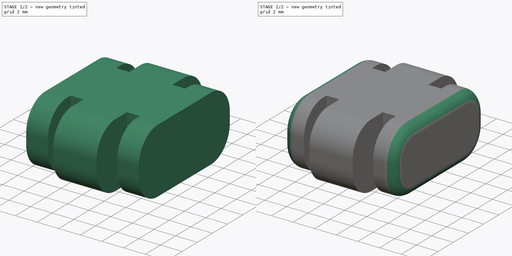
[diagram: build sequence overview — one tinted view per stage of 2, left to right]
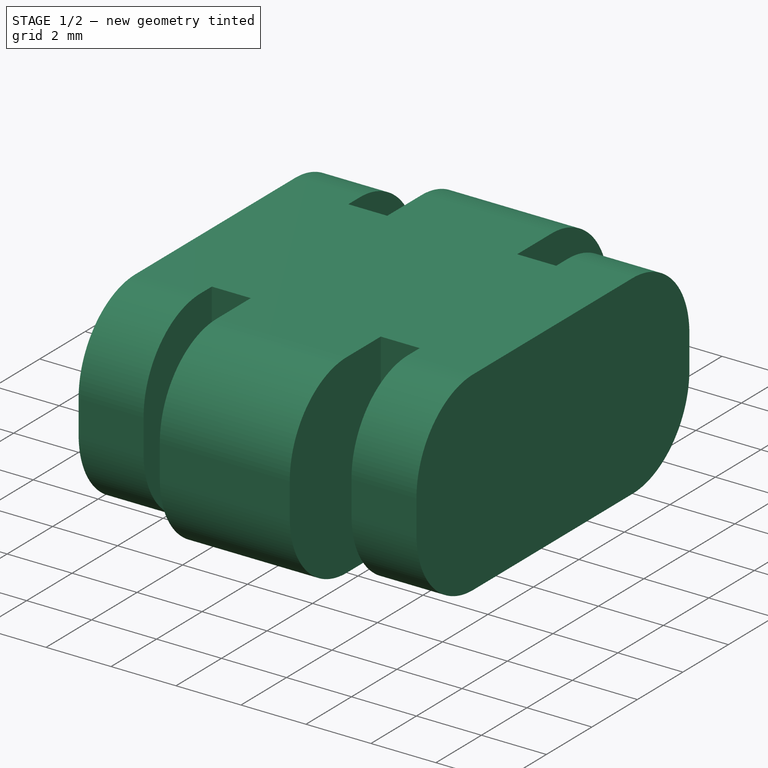
[diagram: stage 1 of 2 — iso view after this stage's code; geometry added in this stage tinted green]
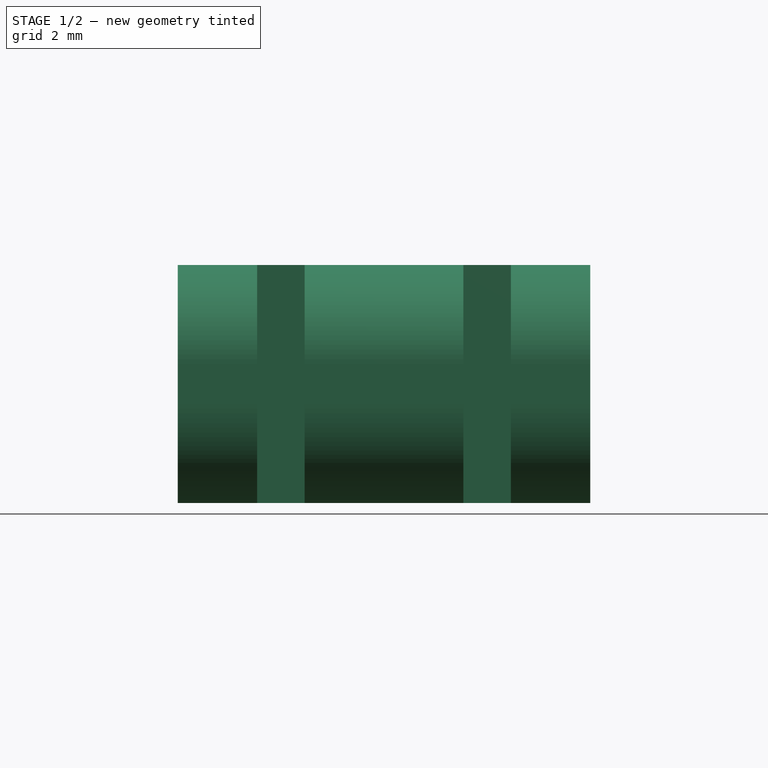
[diagram: stage 1 of 2 — front view after this stage's code; geometry added in this stage tinted green]
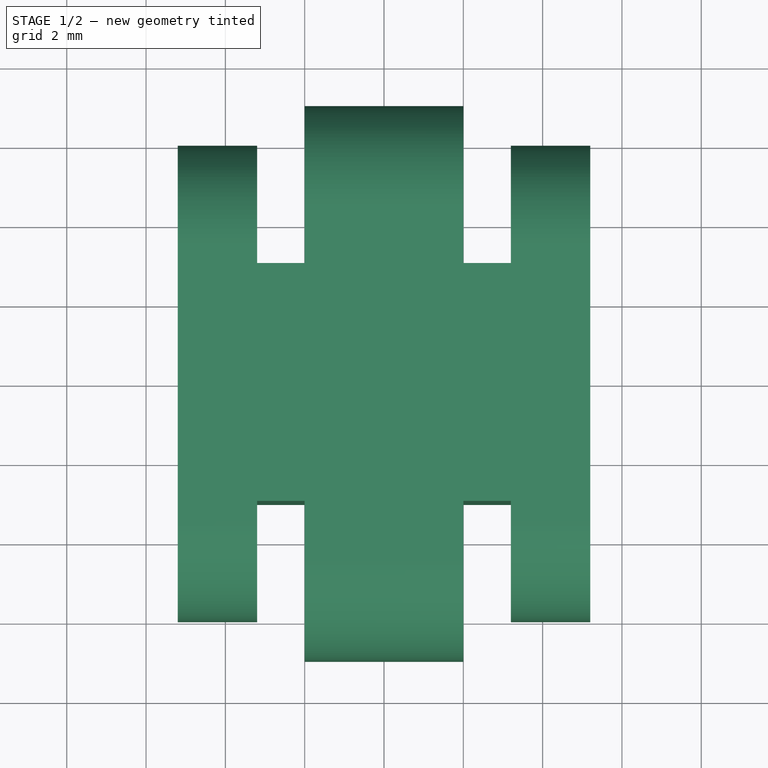
[diagram: stage 1 of 2 — top view after this stage's code; geometry added in this stage tinted green]
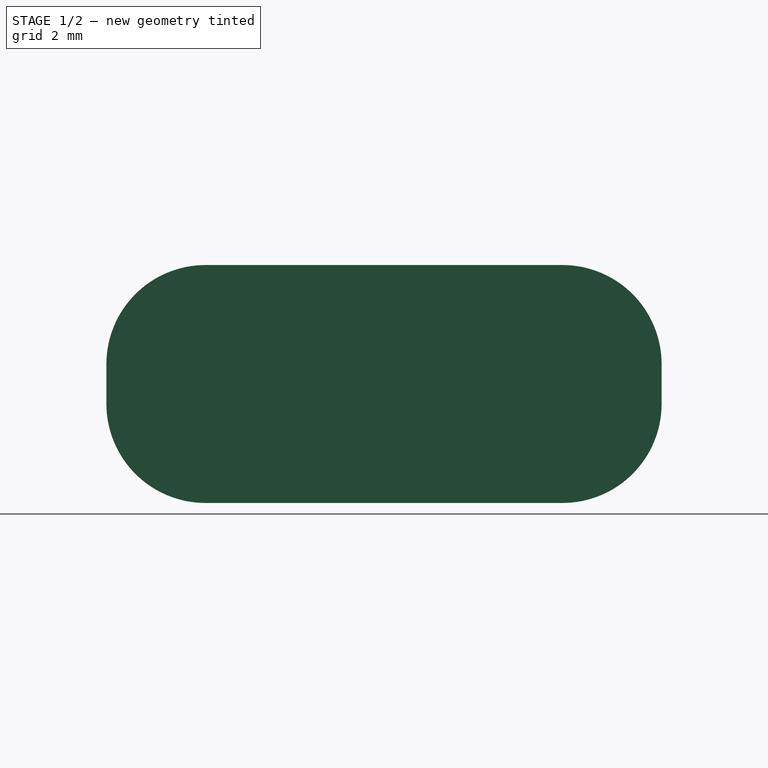
[diagram: stage 1 of 2 — right view after this stage's code; geometry added in this stage tinted green]
FCSTD DOCUMENT  (FreeCAD 0.18R16131 (Git))
Label: shelf_spacer_1
License: All rights reserved
LicenseURL: http://en.wikipedia.org/wiki/All_rights_reserved
objects: PartDesign::Fillet×2, Sketcher::SketchObject×1, PartDesign::Pad×1, PartDesign::Body×1
note: 6 computed .brp shape members not serialized (recipe doc carries the construction recipe); baked Part::Feature solids carry a one-line shape summary decoded from their .brp

FEATURE [Sketcher::SketchObject] Sketch
  MapMode = 5
  Support = -> [XY_Plane]
  sketch-geometry (24):
    g0: LineSegment StartX=0 StartY=7 StartZ=0 EndX=-2 EndY=7 EndZ=0
    g1: LineSegment StartX=-2 StartY=7 StartZ=0 EndX=-2 EndY=3 EndZ=0
    g2: LineSegment StartX=-2 StartY=3 StartZ=0 EndX=-3.2 EndY=3 EndZ=0
    g3: LineSegment StartX=-3.2 StartY=3 StartZ=0 EndX=-3.2 EndY=6 EndZ=0
    g4: LineSegment StartX=-3.2 StartY=6 StartZ=0 EndX=-5.2 EndY=6 EndZ=0
    g5: LineSegment StartX=-5.2 StartY=6 StartZ=0 EndX=-5.2 EndY=0 EndZ=0
    g6: LineSegment StartX=-5.2 StartY=0 StartZ=0 EndX=-5.2 EndY=-6 EndZ=0
    g7: LineSegment StartX=-5.2 StartY=-6 StartZ=0 EndX=-3.2 EndY=-6 EndZ=0
    g8: LineSegment StartX=-3.2 StartY=-6 StartZ=0 EndX=-3.2 EndY=-3 EndZ=0
    g9: LineSegment StartX=-3.2 StartY=-3 StartZ=0 EndX=-2 EndY=-3 EndZ=0
    g10: LineSegment StartX=-2 StartY=-3 StartZ=0 EndX=-2 EndY=-7 EndZ=0
    g11: LineSegment StartX=-2 StartY=-7 StartZ=0 EndX=0 EndY=-7 EndZ=0
    g12: LineSegment StartX=0 StartY=-7 StartZ=0 EndX=2 EndY=-7 EndZ=0
    g13: LineSegment StartX=2 StartY=-7 StartZ=0 EndX=2 EndY=-3 EndZ=0
    g14: LineSegment StartX=2 StartY=-3 StartZ=0 EndX=3.2 EndY=-3 EndZ=0
    g15: LineSegment StartX=3.2 StartY=-3 StartZ=0 EndX=3.2 EndY=-6 EndZ=0
    g16: LineSegment StartX=3.2 StartY=-6 StartZ=0 EndX=5.2 EndY=-6 EndZ=0
    g17: LineSegment StartX=5.2 StartY=-6 StartZ=0 EndX=5.2 EndY=0 EndZ=0
    g18: LineSegment StartX=5.2 StartY=0 StartZ=0 EndX=5.2 EndY=6 EndZ=0
    g19: LineSegment StartX=5.2 StartY=6 StartZ=0 EndX=3.2 EndY=6 EndZ=0
    g20: LineSegment StartX=3.2 StartY=6 StartZ=0 EndX=3.2 EndY=3 EndZ=0
    g21: LineSegment StartX=3.2 StartY=3 StartZ=0 EndX=2 EndY=3 EndZ=0
    g22: LineSegment StartX=2 StartY=3 StartZ=0 EndX=2 EndY=7 EndZ=0
    g23: LineSegment StartX=2 StartY=7 StartZ=0 EndX=0 EndY=7 EndZ=0
  constraints (72):
    c: PointOnObject(g0,g-2)
    c: Horizontal(g0)
    c: Coincident(g0,g1)
    c: Coincident(g1,g2)
    c: Coincident(g2,g3)
    c: Coincident(g3,g4)
    c: Coincident(g4,g5)
    c: PointOnObject(g5,g-1)
    c: Coincident(g5,g6)
    c: Coincident(g6,g7)
    c: Coincident(g7,g8)
    c: Vertical(g8)
    c: Coincident(g8,g9)
    c: Coincident(g9,g10)
    c: Vertical(g10)
    c: Coincident(g10,g11)
    c: PointOnObject(g11,g-2)
    c: Coincident(g11,g12)
    c: Horizontal(g12)
    c: Coincident(g12,g13)
    c: Vertical(g13)
    c: Coincident(g13,g14)
    c: Coincident(g14,g15)
    c: Coincident(g15,g16)
    c: Horizontal(g16)
    c: Coincident(g16,g17)
    c: Coincident(g17,g18)
    c: Vertical(g18)
    c: Coincident(g18,g19)
    c: Horizontal(g19)
    c: Coincident(g19,g20)
    c: Vertical(g20)
    c: Coincident(g20,g21)
    c: Horizontal(g21)
    c: Coincident(g21,g22)
    c: Vertical(g22)
    c: Coincident(g22,g23)
    c: Coincident(g23,g0)
    c: Horizontal(g23)
    c: Horizontal(g11)
    c: Horizontal(g9)
    c: Horizontal(g7)
    c: Horizontal(g4)
    c: Horizontal(g2)
    c: Vertical(g3)
    c: Vertical(g1)
    c: Vertical(g5)
    c: Vertical(g6)
    c: Vertical(g15)
    c: Vertical(g17)
    c: Horizontal(g14)
    c: Equal(g0,g23)
    c: Equal(g23,g11)
    c: Equal(g11,g12)
    c: Equal(g5,g6)
    c: PointOnObject(g17,g-1)
    c: Equal(g18,g17)
    c: Equal(g10,g13)
    c: Equal(g13,g22)
    c: Equal(g22,g1)
    c: Equal(g2,g21)
    c: Equal(g21,g14)
    c: Equal(g14,g9)
    c: Equal(g8,g3)
    c: Equal(g3,g20)
    c: Equal(g19,g4)
    c: DistanceX(g0,g22) = 4
    c: DistanceX(g3,g0) = 1.2
    c: DistanceX(g4,g3) = 2
    c: DistanceY(g12,g22) = 14
    c: DistanceY(g16,g18) = 12
    c: DistanceY(g14,g20) = 6
FEATURE [PartDesign::Pad] Pad
  Length = 6
  Length2 = 100
  Profile = -> Sketch
  Refine = true
  Type = 0
FEATURE [PartDesign::Fillet] Fillet
  Base = -> Pad [Edge13,Edge12,Edge16,Edge32,Edge24,Edge47,Edge50,Edge26,Edge14,Edge20,Edge58,Edge60]
  BaseFeature = -> Pad
  Radius = 2.5
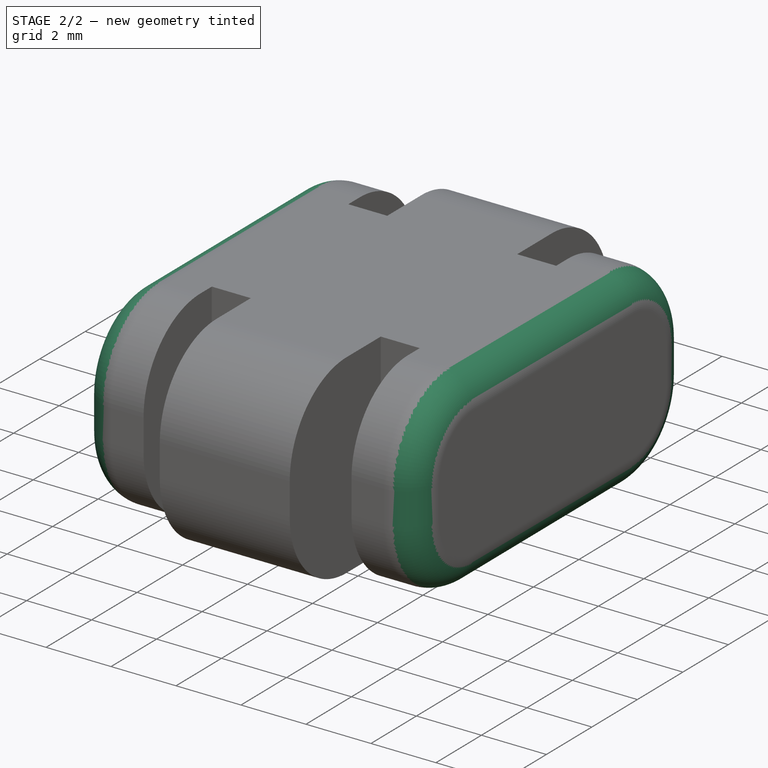
[diagram: stage 2 of 2 — iso view after this stage's code; geometry added in this stage tinted green]
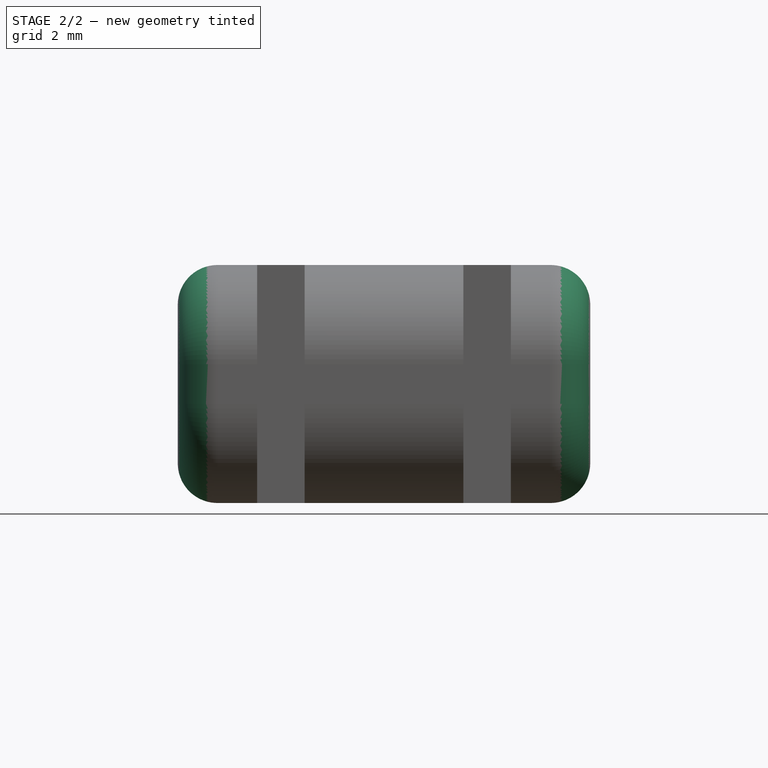
[diagram: stage 2 of 2 — front view after this stage's code; geometry added in this stage tinted green]
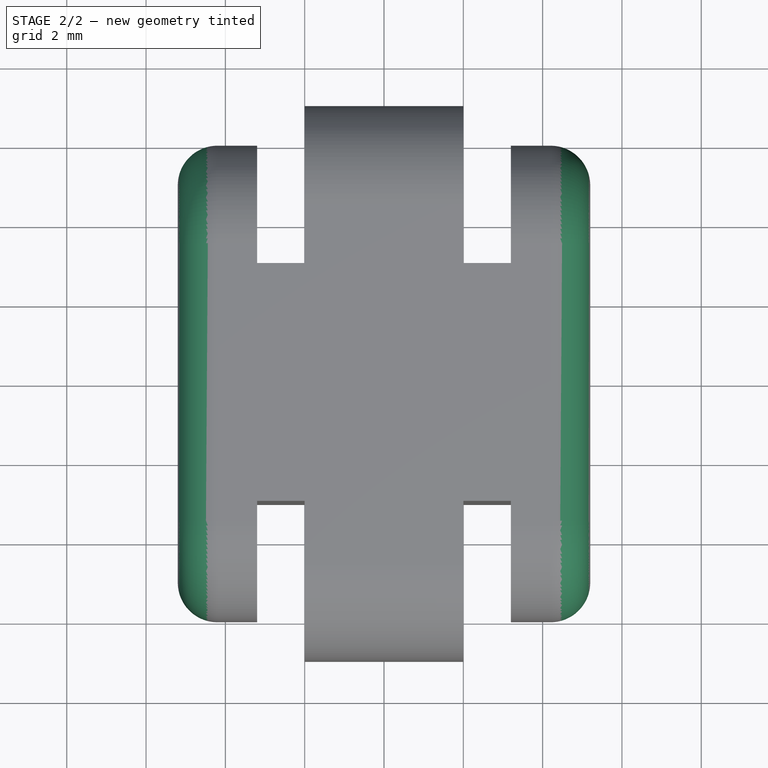
[diagram: stage 2 of 2 — top view after this stage's code; geometry added in this stage tinted green]
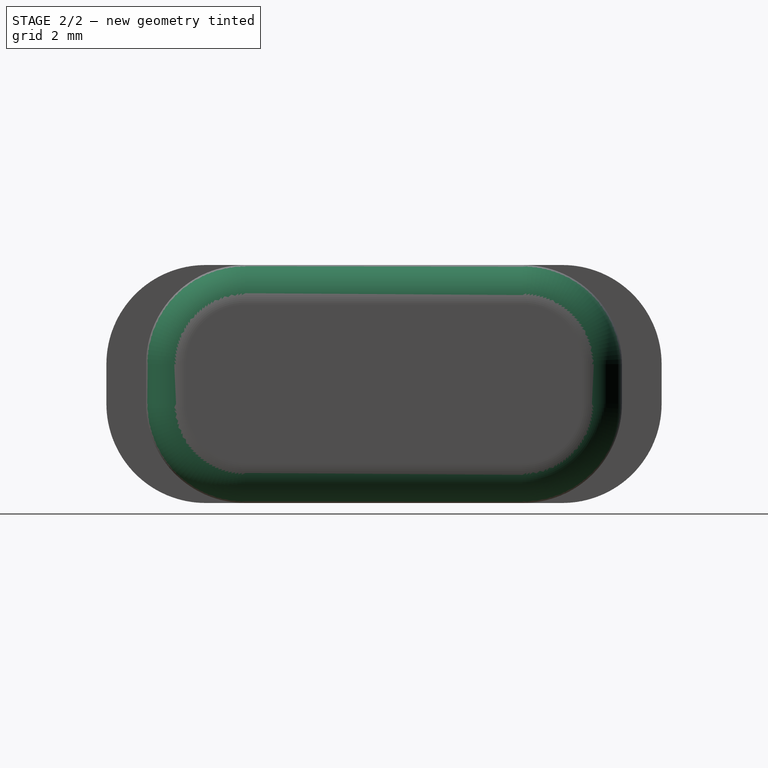
[diagram: stage 2 of 2 — right view after this stage's code; geometry added in this stage tinted green]
FEATURE [PartDesign::Fillet] Fillet001
  Base = -> Fillet [Face13,Face16]
  BaseFeature = -> Fillet
  Radius = 1
FEATURE [PartDesign::Body] Body
  Group = -> [Sketch,Pad,Fillet,Fillet001]
  Origin = -> Origin
  Tip = -> Fillet001
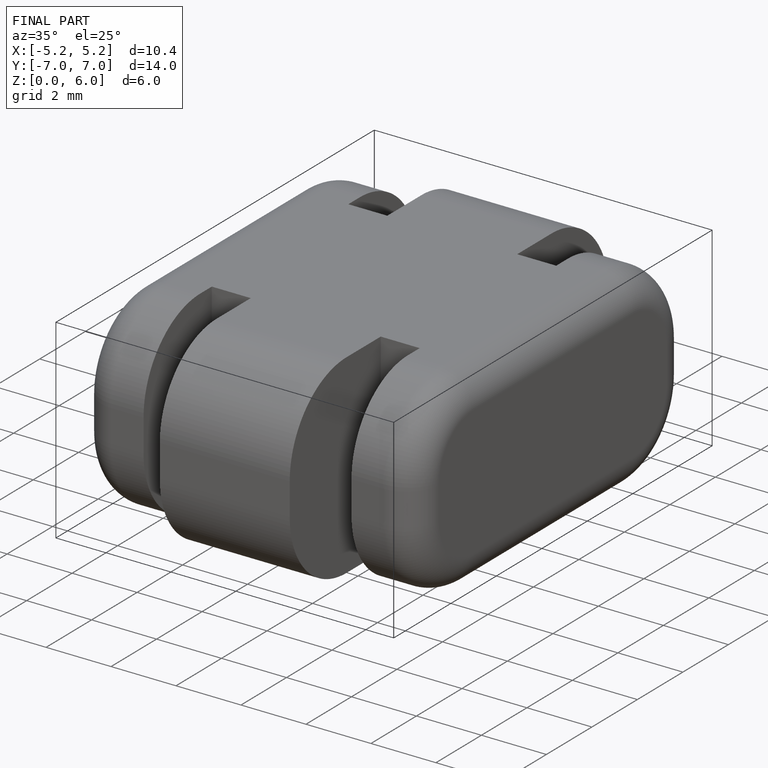
[diagram: finished part — iso view with bounding-box wireframe]
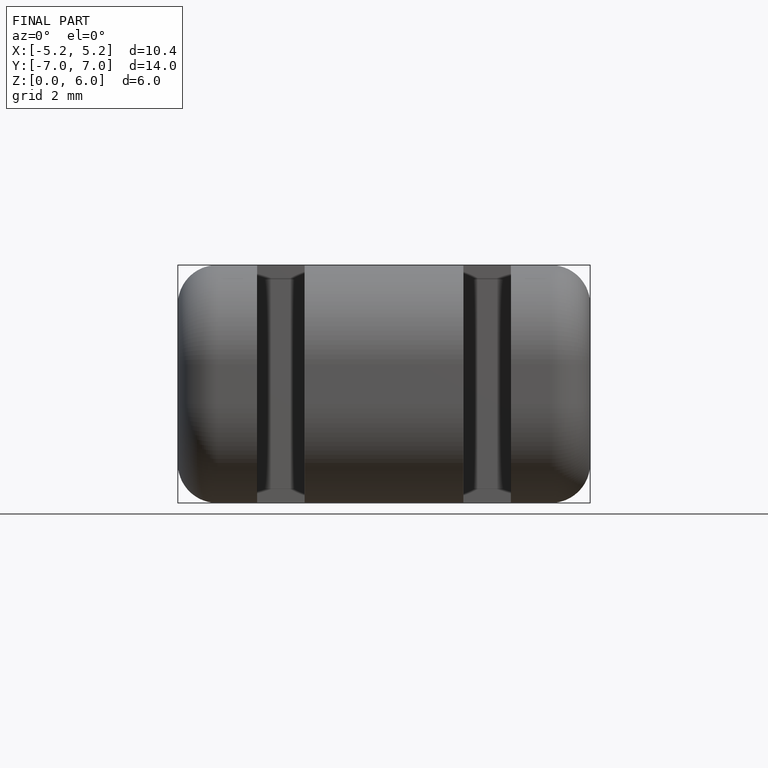
[diagram: finished part — front view with bounding-box wireframe]
